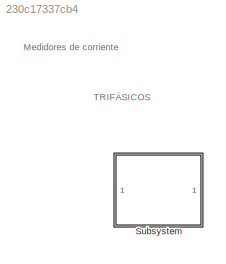
MODEL slx_230c17337cb4
KIND library
CONFIG AbsTol = auto
CONFIG EnableMultiTasking = off
CONFIG FixedStep = auto
CONFIG MaxStep = auto
CONFIG MinStep = auto
CONFIG RelTol = 1e-3
CONFIG SampleTimeConstraint = Unconstrained
CONFIG Solver = VariableStepAuto
CONFIG SolverName = VariableStepAuto
CONFIG StartTime = 0.0
CONFIG StopTime = 10.0
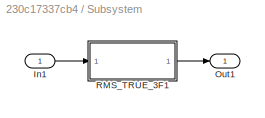
BLOCK [SubSystem] Subsystem
  Ports = [1, 1]
  RequestExecContextInheritance = off
BLOCK [Inport] Subsystem/In1
  IconDisplay = Port number
BLOCK [Outport] Subsystem/Out1
  IconDisplay = Port number
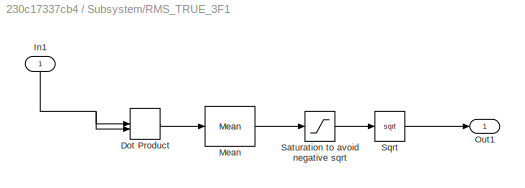
BLOCK [SubSystem] Subsystem/RMS_TRUE_3F1
  Ports = [1, 1]
  RequestExecContextInheritance = off
BLOCK [DotProduct] Subsystem/RMS_TRUE_3F1/Dot Product
  OutDataTypeStr = Inherit: Inherit via internal rule
BLOCK [Inport] Subsystem/RMS_TRUE_3F1/In1
  IconDisplay = Port number
BLOCK [Reference] Subsystem/RMS_TRUE_3F1/Mean  REF=powerlib_meascontrol/Measurements/Mean
  Ports = [1, 1]
  SourceBlock = powerlib_meascontrol/Measurements/Mean
  SourceProductBaseCode = PS
  SourceProductName = Simscape Power Systems
  SourceType = Mean
BLOCK [Outport] Subsystem/RMS_TRUE_3F1/Out1
  IconDisplay = Port number
BLOCK [Saturate] Subsystem/RMS_TRUE_3F1/Saturation to avoid negative sqrt
  InputPortMap = u0
  LowerLimit = 0
  Ports = [1, 1]
  UpperLimit = Inf
BLOCK [Sqrt] Subsystem/RMS_TRUE_3F1/Sqrt
ANNOTATION (root): TRIFÁSICOS
ANNOTATION (root): Medidores de corriente
LINE Subsystem/In1:1 -> Subsystem/RMS_TRUE_3F1:1
LINE Subsystem/RMS_TRUE_3F1/Dot Product:1 -> Subsystem/RMS_TRUE_3F1/Mean:1
NET Subsystem/RMS_TRUE_3F1/In1:1 -> Subsystem/RMS_TRUE_3F1/Dot Product:1, Subsystem/RMS_TRUE_3F1/Dot Product:2
LINE Subsystem/RMS_TRUE_3F1/Mean:1 -> Subsystem/RMS_TRUE_3F1/Saturation to avoid negative sqrt:1
LINE Subsystem/RMS_TRUE_3F1/Saturation to avoid negative sqrt:1 -> Subsystem/RMS_TRUE_3F1/Sqrt:1
LINE Subsystem/RMS_TRUE_3F1/Sqrt:1 -> Subsystem/RMS_TRUE_3F1/Out1:1
LINE Subsystem/RMS_TRUE_3F1:1 -> Subsystem/Out1:1
note: NET lines group one-source signal fan-out (src -> all destinations, sorted); 1:1 wires keep LINE
